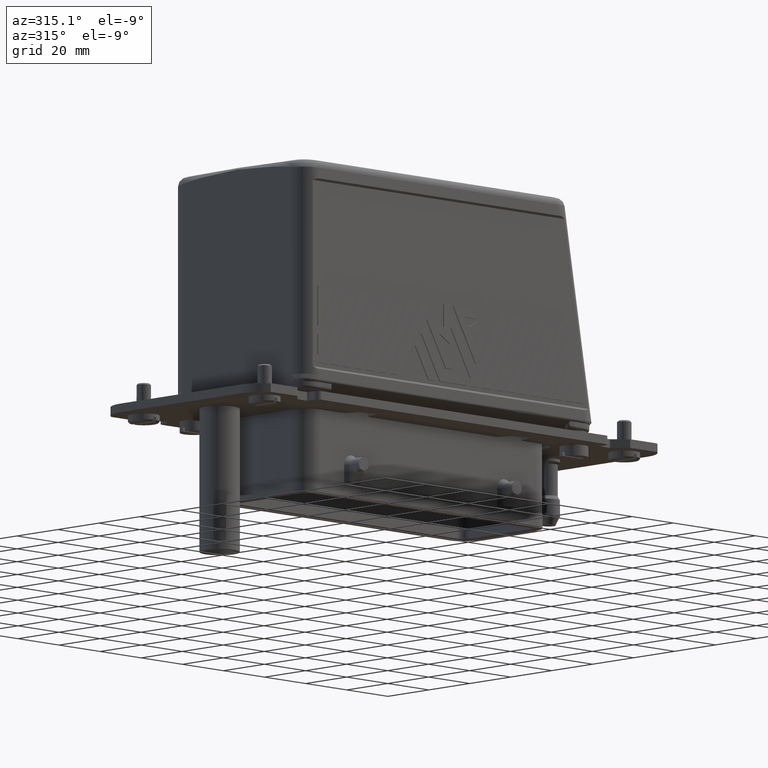
[diagram: clean part render]
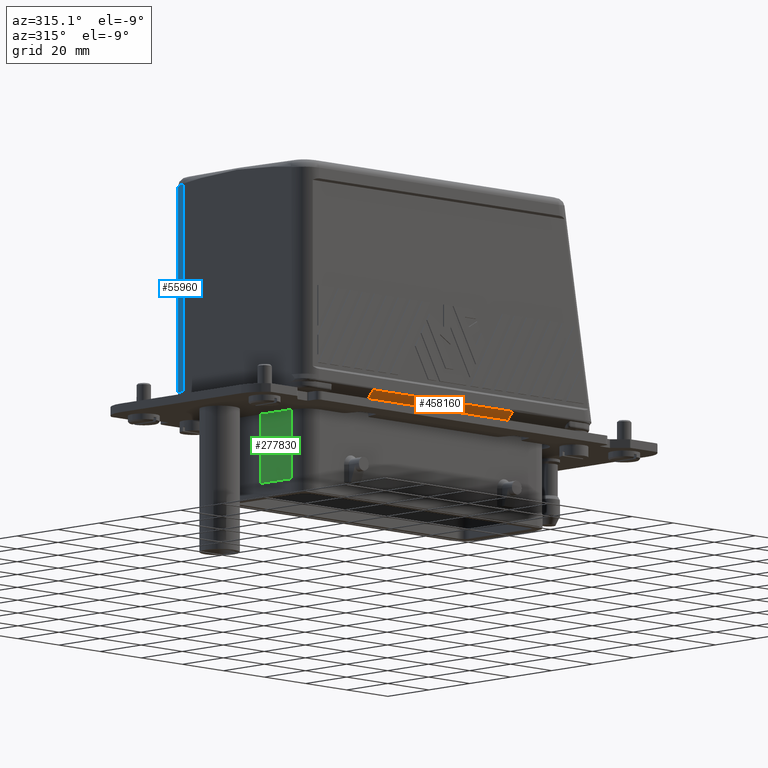
[diagram: same view with three faces highlighted in distinct colors, each labeled with its STEP entity id]
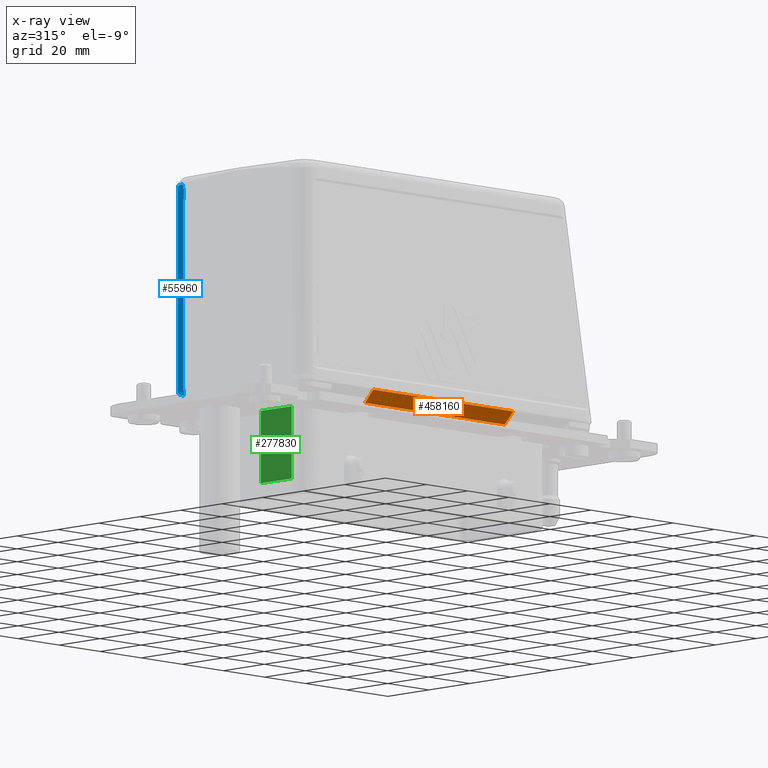
[diagram: x-ray of the same camera — body ghosted, the three highlighted faces saturated]
A machine part, auxiliary view with three faces highlighted in distinct colors.
The next image is the same camera in x-ray (body ghosted, the three faces saturated) — at least one of them is partly hidden behind the body in this view.
Their STEP definitions:

[orange] entity #458160 — the highlighted planar face has unit normal (-0, 0.7071, 0.7071).
#128670=CARTESIAN_POINT('',(18.0315272167148,47.1223944376564,
26.2731169387199));
#128680=VERTEX_POINT('',#128670);
#128710=CARTESIAN_POINT('',(13.9102068731551,51.243714781216,
26.2731169387199));
#128720=DIRECTION('',(0.707106781186556,-0.707106781186539,0.));
#128730=VECTOR('',#128720,1.);
#128740=LINE('',#128710,#128730);
#128750=CARTESIAN_POINT('',(13.9102068731551,51.243714781216,
26.2731169387199));
#128760=VERTEX_POINT('',#128750);
#128770=EDGE_CURVE('',#128760,#128680,#128740,.T.);
#431810=CARTESIAN_POINT('',(18.0315272167149,47.1223944376488,
-41.7168830612791));
#431820=VERTEX_POINT('',#431810);
#431850=CARTESIAN_POINT('',(18.0315272167148,47.1223944376564,
26.2731169387199));
#431860=DIRECTION('',(2.10623481404942E-14,-2.05541333838009E-29,-1.));
#431870=VECTOR('',#431860,1.);
#431880=LINE('',#431850,#431870);
#431890=EDGE_CURVE('',#128680,#431820,#431880,.T.);
#456890=CARTESIAN_POINT('',(13.9102068731552,51.2437147812084,
-41.7168830612791));
#456900=VERTEX_POINT('',#456890);
#457890=CARTESIAN_POINT('',(13.9102068731552,51.2437147812084,
-28.7168830612792));
#457900=DIRECTION('',(-2.88336182627288E-15,2.05103835357463E-29,1.));
#457910=VECTOR('',#457900,1.);
#457920=LINE('',#457890,#457910);
#457930=EDGE_CURVE('',#456900,#128760,#457920,.T.);
#458000=CARTESIAN_POINT('',(13.9102068731551,51.243714781216,
26.2731169387199));
#458010=DIRECTION('',(0.707106781186539,0.707106781186556,0.));
#458020=DIRECTION('',(0.707106781186556,-0.707106781186539,0.));
#458030=AXIS2_PLACEMENT_3D('',#458000,#458010,#458020);
#458040=PLANE('',#458030);
#458050=ORIENTED_EDGE('',*,*,#431890,.F.);
#458060=CARTESIAN_POINT('',(13.9102068731552,51.2437147812084,
-41.7168830612791));
#458070=DIRECTION('',(0.707106781186556,-0.707106781186539,0.));
#458080=VECTOR('',#458070,1.);
#458090=LINE('',#458060,#458080);
#458100=EDGE_CURVE('',#456900,#431820,#458090,.T.);
#458110=ORIENTED_EDGE('',*,*,#458100,.T.);
#458120=ORIENTED_EDGE('',*,*,#457930,.F.);
#458130=ORIENTED_EDGE('',*,*,#128770,.F.);
#458140=EDGE_LOOP('',(#458130,#458120,#458110,#458050));
#458150=FACE_OUTER_BOUND('',#458140,.T.);
#458160=ADVANCED_FACE('',(#458150),#458040,.F.);

[blue] entity #55960 — the highlighted cylindrical surface (edge-blend (fillet) strip) has radius 7 mm, axis along (-0, -0, 1).
#29850=CARTESIAN_POINT('',(79.6281038823621,9.47522005117162,
-68.4044855420344));
#29860=DIRECTION('',(1.24845581394433E-30,1.,-6.12323399573677E-17));
#29870=VECTOR('',#29860,1.);
#29880=LINE('',#29850,#29870);
#29890=CARTESIAN_POINT('',(79.6281038823604,122.011828051175,
-68.4044855420344));
#29900=VERTEX_POINT('',#29890);
#29910=CARTESIAN_POINT('',(79.6281038823604,125.749860699845,
-68.4044855420344));
#29920=VERTEX_POINT('',#29910);
#29930=EDGE_CURVE('',#29900,#29920,#29880,.T.);
#31930=CARTESIAN_POINT('',(79.1281038823632,56.2866080000006,
-71.0025617533807));
#31940=VERTEX_POINT('',#31930);
#31970=CARTESIAN_POINT('',(72.6281038823563,66.036608000012,
-68.404485542049));
#31980=DIRECTION('',(-0.832050294337841,-0.554700196225233,
4.23782129890539E-14));
#31990=DIRECTION('',(0.554700196225233,-0.832050294337841,
-2.81785498788919E-14));
#32000=AXIS2_PLACEMENT_3D('',#31970,#31980,#31990);
#32010=ELLIPSE('',#32000,12.6194294641239,7.);
#32020=CARTESIAN_POINT('',(79.6281038823604,55.536608000005,
-68.404485542049));
#32030=VERTEX_POINT('',#32020);
#32040=EDGE_CURVE('',#31940,#32030,#32010,.T.);
#55260=CARTESIAN_POINT('',(72.6281038823604,19.4752200511739,
-68.4044855420344));
#55270=DIRECTION('',(1.24845581394433E-30,1.,-6.12323399573677E-17));
#55280=DIRECTION('',(-1.94469227433161E-62,-6.12323399573677E-17,-1.));
#55290=AXIS2_PLACEMENT_3D('',#55260,#55270,#55280);
#55300=CYLINDRICAL_SURFACE('',#55290,7.);
#55310=CARTESIAN_POINT('',(73.120387499402,19.4752200511739,
-75.3871538601197));
#55320=DIRECTION('',(1.24845581394433E-30,1.,-6.12323399573677E-17));
#55330=VECTOR('',#55320,1.);
#55340=LINE('',#55310,#55330);
#55350=CARTESIAN_POINT('',(73.120387499402,53.536608,-75.3871538601197))
;
#55360=VERTEX_POINT('',#55350);
#55370=CARTESIAN_POINT('',(73.120387499402,125.782313492833,
-75.3871538601197));
#55380=VERTEX_POINT('',#55370);
#55390=EDGE_CURVE('',#55360,#55380,#55340,.T.);
#55400=ORIENTED_EDGE('',*,*,#55390,.T.);
#55410=CARTESIAN_POINT('',(72.6281038823604,53.536608,-68.4044855420344)
);
#55420=DIRECTION('',(-1.24845581394433E-30,-1.,6.12323399573677E-17));
#55430=DIRECTION('',(-1.94469227433161E-62,-6.12323399573677E-17,-1.));
#55440=AXIS2_PLACEMENT_3D('',#55410,#55420,#55430);
#55450=CIRCLE('',#55440,7.);
#55460=CARTESIAN_POINT('',(79.6281038823614,53.536608,-68.404485542049))
;
#55470=VERTEX_POINT('',#55460);
#55480=EDGE_CURVE('',#55360,#55470,#55450,.T.);
#55490=ORIENTED_EDGE('',*,*,#55480,.F.);
#55500=CARTESIAN_POINT('',(79.6281038823563,10.0000000000021,
-68.404485542049));
#55510=DIRECTION('',(1.24845581394433E-30,1.,-6.12323399573677E-17));
#55520=VECTOR('',#55510,1.);
#55530=LINE('',#55500,#55520);
#55540=EDGE_CURVE('',#55470,#32030,#55530,.T.);
#55550=ORIENTED_EDGE('',*,*,#55540,.F.);
#55560=ORIENTED_EDGE('',*,*,#32040,.T.);
#55570=CARTESIAN_POINT('',(79.1281038823636,19.4752200511739,
-71.0025617533797));
#55580=DIRECTION('',(1.24845581394433E-30,1.,-6.12323399573677E-17));
#55590=VECTOR('',#55580,1.);
#55600=LINE('',#55570,#55590);
#55610=CARTESIAN_POINT('',(79.1281038823642,121.261828051199,
-71.0025617533782));
#55620=VERTEX_POINT('',#55610);
#55630=EDGE_CURVE('',#31940,#55620,#55600,.T.);
#55640=ORIENTED_EDGE('',*,*,#55630,.F.);
#55650=CARTESIAN_POINT('',(72.6281038823604,111.511828051179,
-68.4044855420344));
#55660=DIRECTION('',(0.832050294337843,-0.55470019622523,
-4.2378212989054E-14));
#55670=DIRECTION('',(0.55470019622523,0.832050294337843,
-2.83257341065137E-14));
#55680=AXIS2_PLACEMENT_3D('',#55650,#55660,#55670);
#55690=ELLIPSE('',#55680,12.6194294641239,7.);
#55700=EDGE_CURVE('',#55620,#29900,#55690,.T.);
#55710=ORIENTED_EDGE('',*,*,#55700,.F.);
#55720=ORIENTED_EDGE('',*,*,#29930,.F.);
#55730=CARTESIAN_POINT('',(72.8141672898664,125.783840313432,
-75.4020122771307));
#55740=CARTESIAN_POINT('',(73.0293369380093,125.782767901472,
-75.3962909416587));
#55750=CARTESIAN_POINT('',(73.2441517608261,125.781696074787,
-75.3806455618682));
#55760=CARTESIAN_POINT('',(74.040186278496,125.777726424505,
-75.2856164523169));
#55770=CARTESIAN_POINT('',(74.61233461454,125.774873245713,
-75.1430887068879));
#55780=CARTESIAN_POINT('',(75.6996617722488,125.769450982656,
-74.7211151011611));
#55790=CARTESIAN_POINT('',(76.2106727568916,125.766902682483,
-74.4459655387766));
#55800=CARTESIAN_POINT('',(77.1533623361125,125.76220169544,
-73.7762932405508));
#55810=CARTESIAN_POINT('',(77.58141040757,125.760067113195,
-73.3843490457859));
#55820=CARTESIAN_POINT('',(78.3313415014882,125.756327370619,
-72.5041631555345));
#55830=CARTESIAN_POINT('',(78.6503383507766,125.754736603002,
-72.0193121759754));
#55840=CARTESIAN_POINT('',(79.1618193300096,125.752185959069,
-70.9822449353728));
#55850=CARTESIAN_POINT('',(79.3523336988251,125.751235905521,
-70.434021676796));
#55860=CARTESIAN_POINT('',(79.5312957299008,125.750343460958,
-69.5973435874957));
#55870=CARTESIAN_POINT('',(79.5730891830924,125.750135046135,
-69.3231004880597));
#55880=CARTESIAN_POINT('',(79.6182305375878,125.749909936059,
-68.8336582911599));
#55890=CARTESIAN_POINT('',(79.6281038823604,125.749875990437,
-68.6191201374577));
#55900=CARTESIAN_POINT('',(79.6281038823604,125.749860699845,
-68.4044855420344));
#55910=B_SPLINE_CURVE_WITH_KNOTS('',3,(#55730,#55740,#55750,#55760,
#55770,#55780,#55790,#55800,#55810,#55820,#55830,#55840,#55850,#55860,
#55870,#55880,#55890,#55900),.UNSPECIFIED.,.F.,.F.,(4,2,2,2,2,2,2,2,4),(
0.,0.507542546611309,1.89055969241986,3.25005491490013,4.60955365791304,
5.96903171297235,7.32851272621059,7.98084782777423,8.48645050946546),
.UNSPECIFIED.);
#55920=EDGE_CURVE('',#55380,#29920,#55910,.T.);
#55930=ORIENTED_EDGE('',*,*,#55920,.T.);
#55940=EDGE_LOOP('',(#55930,#55720,#55710,#55640,#55560,#55550,#55490,
#55400));
#55950=FACE_OUTER_BOUND('',#55940,.T.);
#55960=ADVANCED_FACE('',(#55950),#55300,.T.);

[green] entity #277830 — the highlighted planar face has unit normal (-0.9997, -0.0262, -0).
#275600=CARTESIAN_POINT('',(46.6227085308365,20.0000000000222,
-63.9526680659078));
#275610=DIRECTION('',(-2.40356057059527E-31,1.,1.62312834311911E-32));
#275620=VECTOR('',#275610,1.);
#275630=LINE('',#275600,#275620);
#275640=CARTESIAN_POINT('',(46.6227085308365,19.7826497780822,
-63.9526680659078));
#275650=VERTEX_POINT('',#275640);
#275660=CARTESIAN_POINT('',(46.6227085308366,45.036608000024,
-63.9526680659078));
#275670=VERTEX_POINT('',#275660);
#275680=EDGE_CURVE('',#275650,#275670,#275630,.T.);
#276620=CARTESIAN_POINT('',(31.9417440336335,45.036608000024,
-63.568233481024));
#276630=VERTEX_POINT('',#276620);
#276660=CARTESIAN_POINT('',(-0.0207345775339251,45.036608000024,
-62.7312665229551));
#276670=DIRECTION('',(0.999657324975557,0.,-0.0261769483078759));
#276680=VECTOR('',#276670,1.);
#276690=LINE('',#276660,#276680);
#276700=EDGE_CURVE('',#276630,#275670,#276690,.T.);
#277180=CARTESIAN_POINT('',(-0.0599999999851661,19.5671024321547,
-62.7302383216824));
#277190=DIRECTION('',(-0.999646676442327,-0.00461565309198208,
0.0261766694662199));
#277200=VECTOR('',#277190,1.);
#277210=LINE('',#277180,#277200);
#277220=CARTESIAN_POINT('',(46.2122392391191,19.780754524589,
-63.9419195492284));
#277230=VERTEX_POINT('',#277220);
#277240=EDGE_CURVE('',#275650,#277230,#277210,.T.);
#277430=CARTESIAN_POINT('',(-0.0599999999851661,19.7156880011933,
-62.7302383216824));
#277440=DIRECTION('',(-0.0261769483078759,9.93393329461251E-33,
-0.999657324975557));
#277450=DIRECTION('',(-0.999657324975557,0.,0.0261769483078759));
#277460=AXIS2_PLACEMENT_3D('',#277430,#277440,#277450);
#277470=PLANE('',#277460);
#277480=CARTESIAN_POINT('',(31.9417440336335,20.0000000000222,
-63.568233481024));
#277490=DIRECTION('',(-2.40356057059527E-31,1.,1.62312834311912E-32));
#277500=VECTOR('',#277490,1.);
#277510=LINE('',#277480,#277500);
#277520=CARTESIAN_POINT('',(31.9417440336335,19.7813171797386,
-63.568233481024));
#277530=VERTEX_POINT('',#277520);
#277540=EDGE_CURVE('',#277530,#276630,#277510,.T.);
#277550=ORIENTED_EDGE('',*,*,#277540,.T.);
#277560=CARTESIAN_POINT('',(0.,19.7813171797414,-62.7318094769762));
#277570=DIRECTION('',(-0.999657324975557,8.6613008432046E-14,
0.0261769483078759));
#277580=VECTOR('',#277570,1.);
#277590=LINE('',#277560,#277580);
#277600=CARTESIAN_POINT('',(39.8260077077192,19.781317179738,
-63.7746901912244));
#277610=VERTEX_POINT('',#277600);
#277620=EDGE_CURVE('',#277610,#277530,#277590,.T.);
#277630=ORIENTED_EDGE('',*,*,#277620,.T.);
#277640=CARTESIAN_POINT('',(26.640137016686,0.,-63.4294060154876));
#277650=DIRECTION('',(0.554592951332495,0.831995044772838,
-0.0145225275264182));
#277660=VECTOR('',#277650,1.);
#277670=LINE('',#277640,#277660);
#277680=CARTESIAN_POINT('',(39.8256326519037,19.7807545245882,
-63.7746803700423));
#277690=VERTEX_POINT('',#277680);
#277700=EDGE_CURVE('',#277690,#277610,#277670,.T.);
#277710=ORIENTED_EDGE('',*,*,#277700,.T.);
#277720=CARTESIAN_POINT('',(0.,19.780754524589,-62.7318094769762));
#277730=DIRECTION('',(0.999657324975557,-3.46944695195361E-18,
-0.0261769483078759));
#277740=VECTOR('',#277730,1.);
#277750=LINE('',#277720,#277740);
#277760=EDGE_CURVE('',#277690,#277230,#277750,.T.);
#277770=ORIENTED_EDGE('',*,*,#277760,.F.);
#277780=ORIENTED_EDGE('',*,*,#277240,.T.);
#277790=ORIENTED_EDGE('',*,*,#275680,.F.);
#277800=ORIENTED_EDGE('',*,*,#276700,.T.);
#277810=EDGE_LOOP('',(#277800,#277790,#277780,#277770,#277710,#277630,
#277550));
#277820=FACE_OUTER_BOUND('',#277810,.T.);
#277830=ADVANCED_FACE('',(#277820),#277470,.T.);